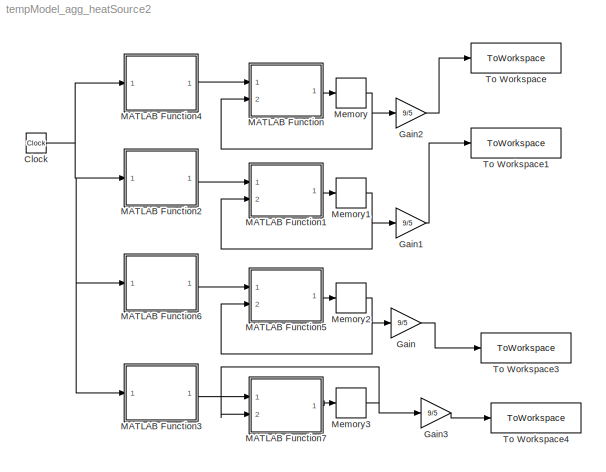
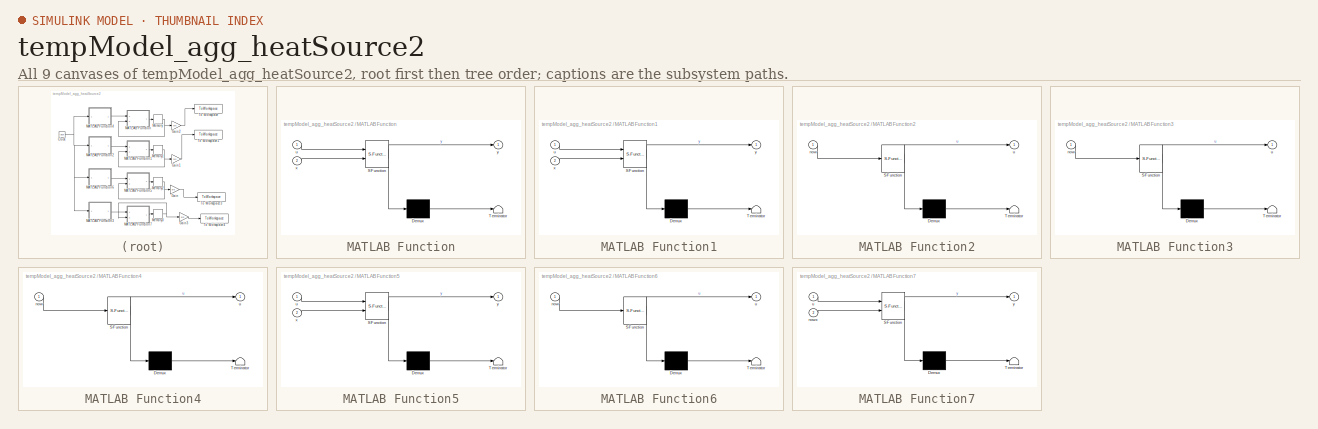
[diagram: thumbnail index - all 9 canvases of the model, root first then tree order]
MODEL tempModel_agg_heatSource2
KIND model
BLOCK [Clock] Clock
  SID = 109
BLOCK [Gain] Gain
  Gain = 9/5
  OutDataTypeStr = Inherit: Inherit via internal rule
  ParamDataTypeStr = Inherit: Inherit via internal rule
  SID = 402
  SaturateOnIntegerOverflow = off
BLOCK [Gain] Gain1
  Gain = 9/5
  OutDataTypeStr = Inherit: Inherit via internal rule
  ParamDataTypeStr = Inherit: Inherit via internal rule
  SID = 403
  SaturateOnIntegerOverflow = off
BLOCK [Gain] Gain2
  Gain = 9/5
  OutDataTypeStr = Inherit: Inherit via internal rule
  ParamDataTypeStr = Inherit: Inherit via internal rule
  SID = 404
  SaturateOnIntegerOverflow = off
BLOCK [Gain] Gain3
  Gain = 9/5
  OutDataTypeStr = Inherit: Inherit via internal rule
  ParamDataTypeStr = Inherit: Inherit via internal rule
  SID = 405
  SaturateOnIntegerOverflow = off
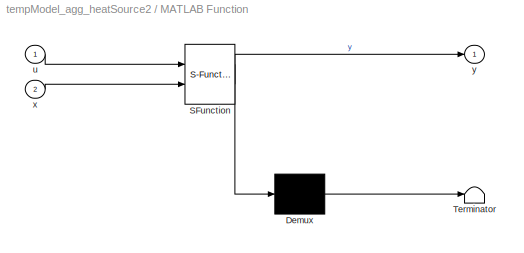
BLOCK [SubSystem] MATLAB Function
  ErrorFcn = Stateflow.Translate.translate
  PermitHierarchicalResolution = ExplicitOnly
  Ports = [2, 1]
  RequestExecContextInheritance = off
  SFBlockType = MATLAB Function
  SID = 86
  TreatAsAtomicUnit = on
BLOCK [Demux] MATLAB Function/ Demux 
  Outputs = 1
  Ports = [1, 1]
  SID = 86::20
BLOCK [S-Function] MATLAB Function/ SFunction 
  EnableBusSupport = on
  FunctionName = sf_sfun
  Parameters = parameters1,xx
  PortCounts = [2 2]
  Ports = [2, 2]
  SFcnIsStateOwnerBlock = off
  SFunctionDeploymentMode = off
  SID = 86::19
  Tag = Stateflow S-Function 2
BLOCK [Terminator] MATLAB Function/ Terminator 
  SID = 86::21
BLOCK [Inport] MATLAB Function/u
  IconDisplay = Port number
  SID = 86::1
BLOCK [Inport] MATLAB Function/x
  IconDisplay = Port number
  Port = 2
  SID = 86::22
BLOCK [Outport] MATLAB Function/y
  IconDisplay = Port number
  SID = 86::5
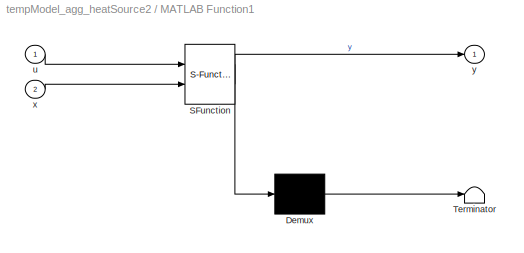
BLOCK [SubSystem] MATLAB Function1
  ErrorFcn = Stateflow.Translate.translate
  PermitHierarchicalResolution = ExplicitOnly
  Ports = [2, 1]
  RequestExecContextInheritance = off
  SFBlockType = MATLAB Function
  SID = 396
  TreatAsAtomicUnit = on
BLOCK [Demux] MATLAB Function1/ Demux 
  Outputs = 1
  Ports = [1, 1]
  SID = 396::20
BLOCK [S-Function] MATLAB Function1/ SFunction 
  EnableBusSupport = on
  FunctionName = sf_sfun
  Parameters = parameters2,xx
  PortCounts = [2 2]
  Ports = [2, 2]
  SFcnIsStateOwnerBlock = off
  SFunctionDeploymentMode = off
  SID = 396::19
  Tag = Stateflow S-Function 1
BLOCK [Terminator] MATLAB Function1/ Terminator 
  SID = 396::21
BLOCK [Inport] MATLAB Function1/u
  IconDisplay = Port number
  SID = 396::1
BLOCK [Inport] MATLAB Function1/x
  IconDisplay = Port number
  Port = 2
  SID = 396::22
BLOCK [Outport] MATLAB Function1/y
  IconDisplay = Port number
  SID = 396::5
BLOCK [SubSystem] MATLAB Function2
  ErrorFcn = Stateflow.Translate.translate
  PermitHierarchicalResolution = ExplicitOnly
  Ports = [1, 1]
  RequestExecContextInheritance = off
  SFBlockType = MATLAB Function
  SID = 397
  TreatAsAtomicUnit = on
BLOCK [Demux] MATLAB Function2/ Demux 
  Outputs = 1
  Ports = [1, 1]
  SID = 397::20
BLOCK [S-Function] MATLAB Function2/ SFunction 
  EnableBusSupport = on
  FunctionName = sf_sfun
  Parameters = startOven,timeOven
  PortCounts = [1 2]
  Ports = [1, 2]
  SFcnIsStateOwnerBlock = off
  SFunctionDeploymentMode = off
  SID = 397::19
  Tag = Stateflow S-Function 3
BLOCK [Terminator] MATLAB Function2/ Terminator 
  SID = 397::21
BLOCK [Inport] MATLAB Function2/now
  IconDisplay = Port number
  SID = 397::27
BLOCK [Outport] MATLAB Function2/u
  IconDisplay = Port number
  SID = 397::5
BLOCK [SubSystem] MATLAB Function3
  ErrorFcn = Stateflow.Translate.translate
  PermitHierarchicalResolution = ExplicitOnly
  Ports = [1, 1]
  RequestExecContextInheritance = off
  SFBlockType = MATLAB Function
  SID = 406
  TreatAsAtomicUnit = on
BLOCK [Demux] MATLAB Function3/ Demux 
  Outputs = 1
  Ports = [1, 1]
  SID = 406::20
BLOCK [S-Function] MATLAB Function3/ SFunction 
  EnableBusSupport = on
  FunctionName = sf_sfun
  Parameters = startPCooker,timePCooker
  PortCounts = [1 2]
  Ports = [1, 2]
  SFcnIsStateOwnerBlock = off
  SFunctionDeploymentMode = off
  SID = 406::19
  Tag = Stateflow S-Function 8
BLOCK [Terminator] MATLAB Function3/ Terminator 
  SID = 406::21
BLOCK [Inport] MATLAB Function3/now
  IconDisplay = Port number
  SID = 406::27
BLOCK [Outport] MATLAB Function3/u
  IconDisplay = Port number
  SID = 406::5
BLOCK [SubSystem] MATLAB Function4
  ErrorFcn = Stateflow.Translate.translate
  PermitHierarchicalResolution = ExplicitOnly
  Ports = [1, 1]
  RequestExecContextInheritance = off
  SFBlockType = MATLAB Function
  SID = 108
  TreatAsAtomicUnit = on
BLOCK [Demux] MATLAB Function4/ Demux 
  Outputs = 1
  Ports = [1, 1]
  SID = 108::20
BLOCK [S-Function] MATLAB Function4/ SFunction 
  EnableBusSupport = on
  FunctionName = sf_sfun
  Parameters = startCoffee,timeCoffee
  PortCounts = [1 2]
  Ports = [1, 2]
  SFcnIsStateOwnerBlock = off
  SFunctionDeploymentMode = off
  SID = 108::19
  Tag = Stateflow S-Function 5
BLOCK [Terminator] MATLAB Function4/ Terminator 
  SID = 108::21
BLOCK [Inport] MATLAB Function4/now
  IconDisplay = Port number
  SID = 108::27
BLOCK [Outport] MATLAB Function4/u
  IconDisplay = Port number
  SID = 108::5
BLOCK [SubSystem] MATLAB Function5
  ErrorFcn = Stateflow.Translate.translate
  PermitHierarchicalResolution = ExplicitOnly
  Ports = [2, 1]
  RequestExecContextInheritance = off
  SFBlockType = MATLAB Function
  SID = 399
  TreatAsAtomicUnit = on
BLOCK [Demux] MATLAB Function5/ Demux 
  Outputs = 1
  Ports = [1, 1]
  SID = 399::20
BLOCK [S-Function] MATLAB Function5/ SFunction 
  EnableBusSupport = on
  FunctionName = sf_sfun
  Parameters = parameters3,xx
  PortCounts = [2 2]
  Ports = [2, 2]
  SFcnIsStateOwnerBlock = off
  SFunctionDeploymentMode = off
  SID = 399::19
  Tag = Stateflow S-Function 6
BLOCK [Terminator] MATLAB Function5/ Terminator 
  SID = 399::21
BLOCK [Inport] MATLAB Function5/u
  IconDisplay = Port number
  SID = 399::1
BLOCK [Inport] MATLAB Function5/x
  IconDisplay = Port number
  Port = 2
  SID = 399::22
BLOCK [Outport] MATLAB Function5/y
  IconDisplay = Port number
  SID = 399::5
BLOCK [SubSystem] MATLAB Function6
  ErrorFcn = Stateflow.Translate.translate
  PermitHierarchicalResolution = ExplicitOnly
  Ports = [1, 1]
  RequestExecContextInheritance = off
  SFBlockType = MATLAB Function
  SID = 400
  TreatAsAtomicUnit = on
BLOCK [Demux] MATLAB Function6/ Demux 
  Outputs = 1
  Ports = [1, 1]
  SID = 400::20
BLOCK [S-Function] MATLAB Function6/ SFunction 
  EnableBusSupport = on
  FunctionName = sf_sfun
  Parameters = startDryer,timeDryer
  PortCounts = [1 2]
  Ports = [1, 2]
  SFcnIsStateOwnerBlock = off
  SFunctionDeploymentMode = off
  SID = 400::19
  Tag = Stateflow S-Function 7
BLOCK [Terminator] MATLAB Function6/ Terminator 
  SID = 400::21
BLOCK [Inport] MATLAB Function6/now
  IconDisplay = Port number
  SID = 400::27
BLOCK [Outport] MATLAB Function6/u
  IconDisplay = Port number
  SID = 400::5
BLOCK [SubSystem] MATLAB Function7
  ErrorFcn = Stateflow.Translate.translate
  PermitHierarchicalResolution = ExplicitOnly
  Ports = [2, 1]
  RequestExecContextInheritance = off
  SFBlockType = MATLAB Function
  SID = 407
  TreatAsAtomicUnit = on
BLOCK [Demux] MATLAB Function7/ Demux 
  Outputs = 1
  Ports = [1, 1]
  SID = 407::20
BLOCK [S-Function] MATLAB Function7/ SFunction 
  EnableBusSupport = on
  FunctionName = sf_sfun
  Parameters = lambda,pCookerDiffTemp,xx
  PortCounts = [2 2]
  Ports = [2, 2]
  SFcnIsStateOwnerBlock = off
  SFunctionDeploymentMode = off
  SID = 407::19
  Tag = Stateflow S-Function 9
BLOCK [Terminator] MATLAB Function7/ Terminator 
  SID = 407::21
BLOCK [Inport] MATLAB Function7/nowx
  IconDisplay = Port number
  Port = 2
  SID = 407::22
BLOCK [Inport] MATLAB Function7/u
  IconDisplay = Port number
  SID = 407::1
BLOCK [Outport] MATLAB Function7/y
  IconDisplay = Port number
  SID = 407::5
BLOCK [Memory] Memory
  InitialCondition = x01
  SID = 87
BLOCK [Memory] Memory1
  InitialCondition = x02
  SID = 398
BLOCK [Memory] Memory2
  InitialCondition = x03
  SID = 401
BLOCK [Memory] Memory3
  InitialCondition = xPC
  SID = 408
BLOCK [ToWorkspace] To Workspace
  FixptAsFi = on
  MaxDataPoints = inf
  Ports = [1]
  SID = 93
  SampleTime = -1
  VariableName = Temp1
BLOCK [ToWorkspace] To Workspace1
  FixptAsFi = on
  MaxDataPoints = inf
  Ports = [1]
  SID = 409
  SampleTime = -1
  VariableName = Temp2
BLOCK [ToWorkspace] To Workspace3
  FixptAsFi = on
  MaxDataPoints = inf
  Ports = [1]
  SID = 410
  SampleTime = -1
  VariableName = Temp3
BLOCK [ToWorkspace] To Workspace4
  FixptAsFi = on
  MaxDataPoints = inf
  Ports = [1]
  SID = 411
  SampleTime = -1
  VariableName = Temp4
NET Clock:1 -> MATLAB Function2:1, MATLAB Function3:1, MATLAB Function4:1, MATLAB Function6:1
LINE Gain1:1 -> To Workspace1:1
LINE Gain2:1 -> To Workspace:1
LINE Gain3:1 -> To Workspace4:1
LINE Gain:1 -> To Workspace3:1
LINE MATLAB Function/ Demux :1 -> MATLAB Function/ Terminator :1
LINE MATLAB Function/ SFunction :1 -> MATLAB Function/ Demux :1
LINE MATLAB Function/ SFunction :2 -> MATLAB Function/y:1
LINE MATLAB Function/u:1 -> MATLAB Function/ SFunction :1
LINE MATLAB Function/x:1 -> MATLAB Function/ SFunction :2
LINE MATLAB Function1/ Demux :1 -> MATLAB Function1/ Terminator :1
LINE MATLAB Function1/ SFunction :1 -> MATLAB Function1/ Demux :1
LINE MATLAB Function1/ SFunction :2 -> MATLAB Function1/y:1
LINE MATLAB Function1/u:1 -> MATLAB Function1/ SFunction :1
LINE MATLAB Function1/x:1 -> MATLAB Function1/ SFunction :2
LINE MATLAB Function1:1 -> Memory1:1
LINE MATLAB Function2/ Demux :1 -> MATLAB Function2/ Terminator :1
LINE MATLAB Function2/ SFunction :1 -> MATLAB Function2/ Demux :1
LINE MATLAB Function2/ SFunction :2 -> MATLAB Function2/u:1
LINE MATLAB Function2/now:1 -> MATLAB Function2/ SFunction :1
LINE MATLAB Function2:1 -> MATLAB Function1:1
LINE MATLAB Function3/ Demux :1 -> MATLAB Function3/ Terminator :1
LINE MATLAB Function3/ SFunction :1 -> MATLAB Function3/ Demux :1
LINE MATLAB Function3/ SFunction :2 -> MATLAB Function3/u:1
LINE MATLAB Function3/now:1 -> MATLAB Function3/ SFunction :1
LINE MATLAB Function3:1 -> MATLAB Function7:1
LINE MATLAB Function4/ Demux :1 -> MATLAB Function4/ Terminator :1
LINE MATLAB Function4/ SFunction :1 -> MATLAB Function4/ Demux :1
LINE MATLAB Function4/ SFunction :2 -> MATLAB Function4/u:1
LINE MATLAB Function4/now:1 -> MATLAB Function4/ SFunction :1
LINE MATLAB Function4:1 -> MATLAB Function:1
LINE MATLAB Function5/ Demux :1 -> MATLAB Function5/ Terminator :1
LINE MATLAB Function5/ SFunction :1 -> MATLAB Function5/ Demux :1
LINE MATLAB Function5/ SFunction :2 -> MATLAB Function5/y:1
LINE MATLAB Function5/u:1 -> MATLAB Function5/ SFunction :1
LINE MATLAB Function5/x:1 -> MATLAB Function5/ SFunction :2
LINE MATLAB Function5:1 -> Memory2:1
LINE MATLAB Function6/ Demux :1 -> MATLAB Function6/ Terminator :1
LINE MATLAB Function6/ SFunction :1 -> MATLAB Function6/ Demux :1
LINE MATLAB Function6/ SFunction :2 -> MATLAB Function6/u:1
LINE MATLAB Function6/now:1 -> MATLAB Function6/ SFunction :1
LINE MATLAB Function6:1 -> MATLAB Function5:1
LINE MATLAB Function7/ Demux :1 -> MATLAB Function7/ Terminator :1
LINE MATLAB Function7/ SFunction :1 -> MATLAB Function7/ Demux :1
LINE MATLAB Function7/ SFunction :2 -> MATLAB Function7/y:1
LINE MATLAB Function7/nowx:1 -> MATLAB Function7/ SFunction :2
LINE MATLAB Function7/u:1 -> MATLAB Function7/ SFunction :1
LINE MATLAB Function7:1 -> Memory3:1
LINE MATLAB Function:1 -> Memory:1
NET Memory1:1 -> Gain1:1, MATLAB Function1:2
NET Memory2:1 -> Gain:1, MATLAB Function5:2
NET Memory3:1 -> Gain3:1, MATLAB Function7:2
NET Memory:1 -> Gain2:1, MATLAB Function:2
note: NET lines group one-source signal fan-out (src -> all destinations, sorted); 1:1 wires keep LINE
CHART MATLAB Function1 states=1 transitions=1
  STATE_LABEL 'eML_blk_kernel()'
CHART MATLAB Function states=1 transitions=1
  STATE_LABEL 'eML_blk_kernel()'
CHART MATLAB Function2 states=1 transitions=1
  STATE_LABEL 'eML_blk_kernel()'
CHART MATLAB Function4 states=1 transitions=1
  STATE_LABEL 'eML_blk_kernel()'
CHART MATLAB Function5 states=1 transitions=1
  STATE_LABEL 'eML_blk_kernel()'
CHART MATLAB Function6 states=1 transitions=1
  STATE_LABEL 'eML_blk_kernel()'
CHART MATLAB Function3 states=1 transitions=1
  STATE_LABEL 'eML_blk_kernel()'
CHART MATLAB Function7 states=1 transitions=1
  STATE_LABEL 'eML_blk_kernel()'
